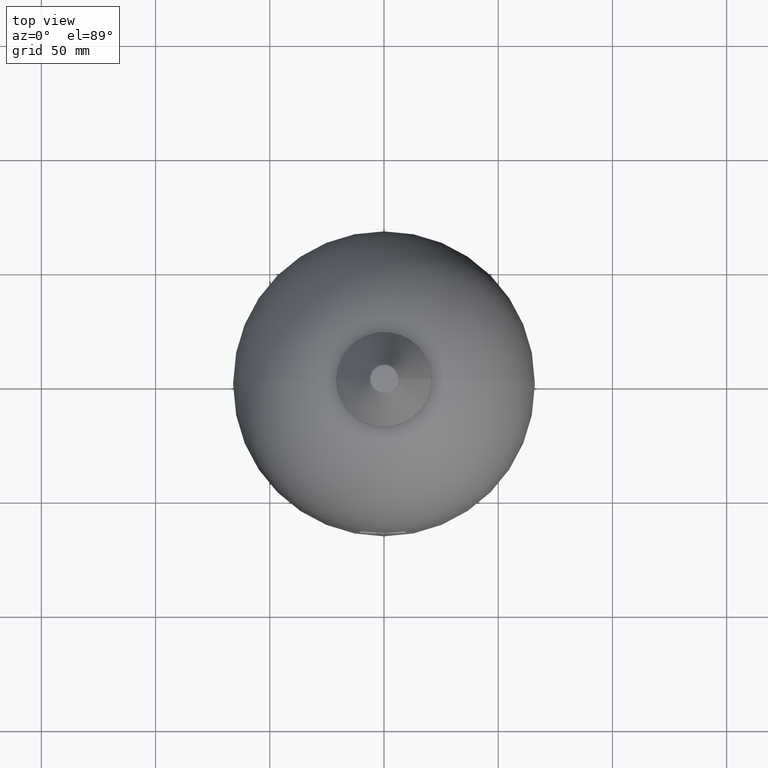
[diagram: clean part render]
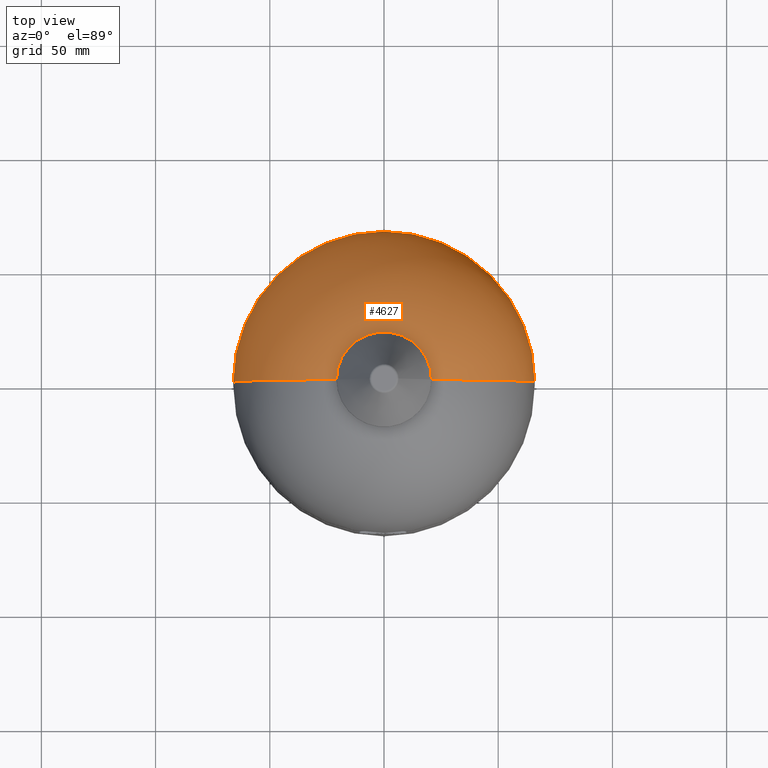
[diagram: same view with one face highlighted and labeled with its STEP entity id]
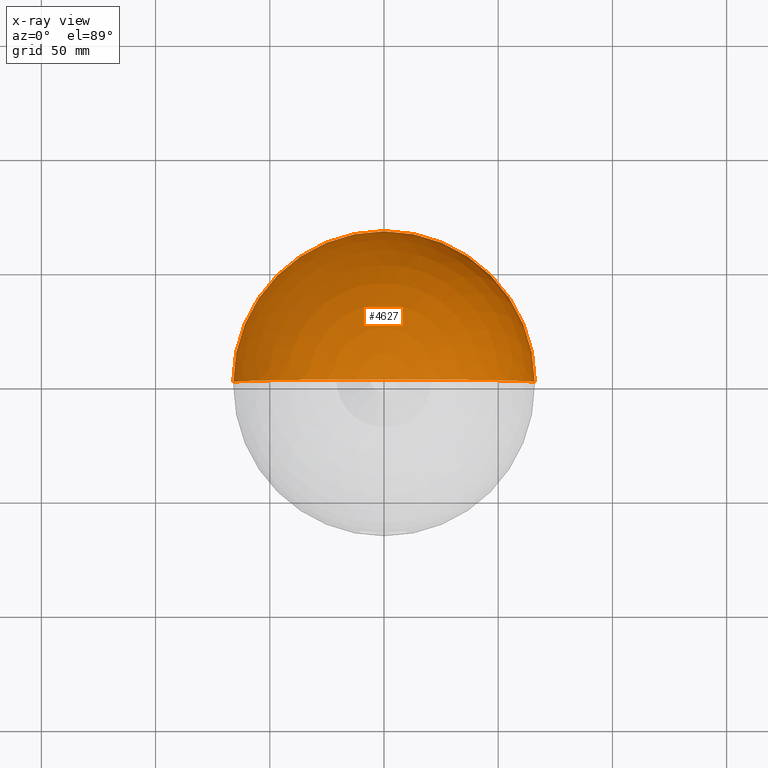
[diagram: x-ray of the same camera — body ghosted, the highlighted face saturated]
A machine part, top view. The second image highlights one B-rep face of the part: STEP entity #4627.
The next image is the same camera in x-ray: the body ghosted, the highlighted face saturated — about 0% of this face is hidden behind the body in this view.
In plain terms, the highlighted spherical surface has radius 66 mm.
Its self-contained STEP definition (entity closure, byte-faithful):
#4581=CARTESIAN_POINT('',(-66.000000000000014,0.0,168.000000000000030));
#4582=VERTEX_POINT('',#4581);
#4583=CARTESIAN_POINT('',(3.903532E-014,0.0,233.999999999999970));
#4584=VERTEX_POINT('',#4583);
#4585=CARTESIAN_POINT('',(5.240007E-015,0.0,167.999999999999970));
#4586=DIRECTION('',(0.0,1.0,0.0));
#4587=DIRECTION('',(-1.0,0.0,0.0));
#4588=AXIS2_PLACEMENT_3D('',#4585,#4586,#4587);
#4589=CIRCLE('',#4588,66.000000000000028);
#4590=EDGE_CURVE('',#4582,#4584,#4589,.T.);
#4592=CARTESIAN_POINT('',(65.999999999999986,-8.082402E-015,167.999999999999970));
#4593=VERTEX_POINT('',#4592);
#4601=CARTESIAN_POINT('',(5.240007E-015,0.0,167.999999999999970));
#4602=DIRECTION('',(0.0,-1.0,0.0));
#4603=DIRECTION('',(1.0,0.0,0.0));
#4604=AXIS2_PLACEMENT_3D('',#4601,#4602,#4603);
#4605=CIRCLE('',#4604,66.000000000000028);
#4606=EDGE_CURVE('',#4593,#4584,#4605,.T.);
#4611=CARTESIAN_POINT('',(5.240007E-015,0.0,167.999999999999970));
#4612=DIRECTION('',(0.0,0.0,-1.0));
#4613=DIRECTION('',(-1.0,0.0,0.0));
#4614=AXIS2_PLACEMENT_3D('',#4611,#4612,#4613);
#4615=SPHERICAL_SURFACE('',#4614,66.000000000000028);
#4616=ORIENTED_EDGE('',*,*,#4590,.T.);
#4617=ORIENTED_EDGE('',*,*,#4606,.F.);
#4618=CARTESIAN_POINT('',(-8.082669E-015,0.0,168.0));
#4619=DIRECTION('',(0.0,0.0,-1.0));
#4620=DIRECTION('',(-1.0,0.0,0.0));
#4621=AXIS2_PLACEMENT_3D('',#4618,#4619,#4620);
#4622=CIRCLE('',#4621,66.0);
#4623=EDGE_CURVE('',#4582,#4593,#4622,.T.);
#4624=ORIENTED_EDGE('',*,*,#4623,.F.);
#4625=EDGE_LOOP('',(#4616,#4617,#4624));
#4626=FACE_OUTER_BOUND('',#4625,.T.);
#4627=ADVANCED_FACE('',(#4626),#4615,.T.);